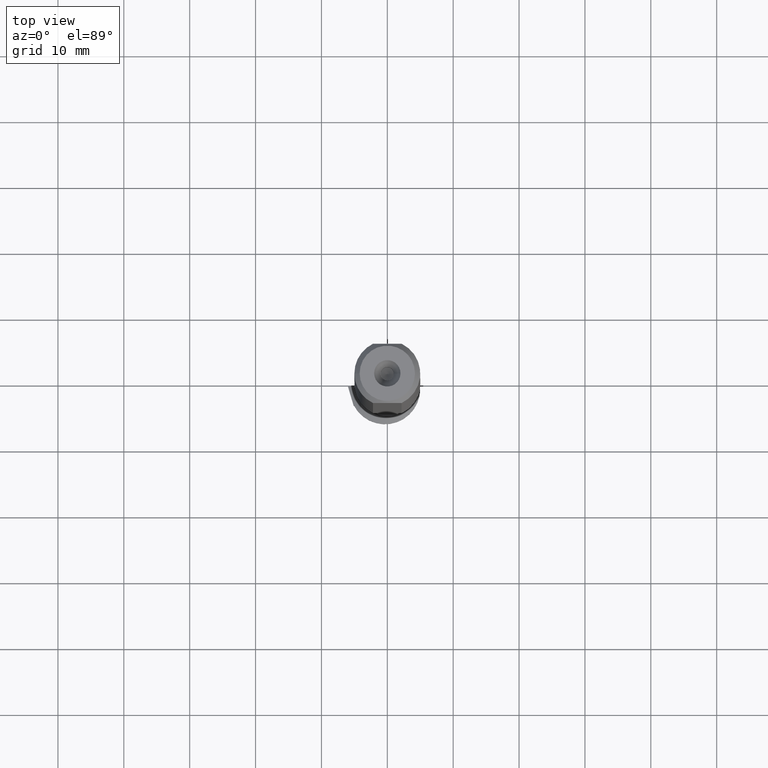
[diagram: clean part render]
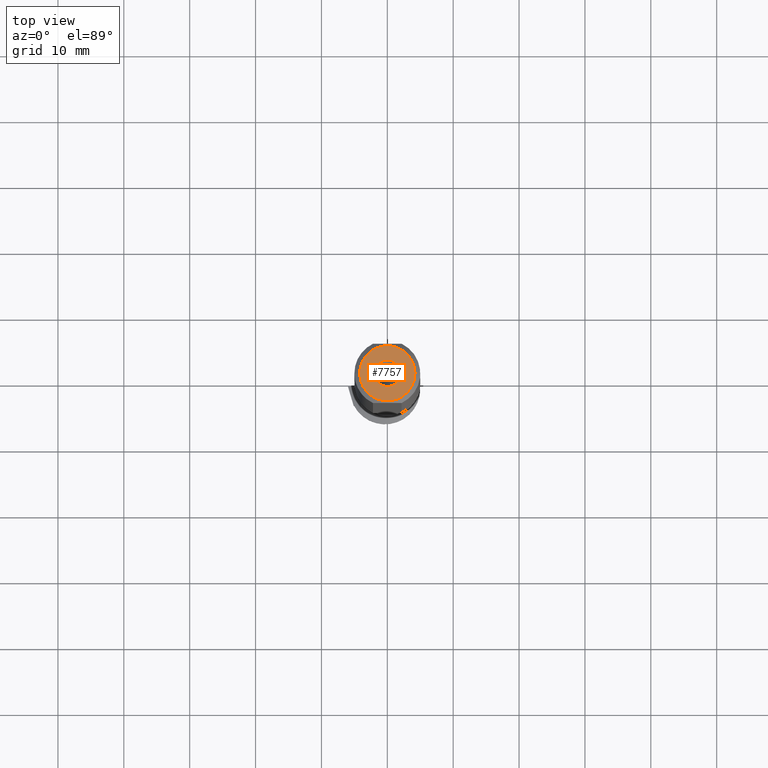
[diagram: same view with one face highlighted and labeled with its STEP entity id]
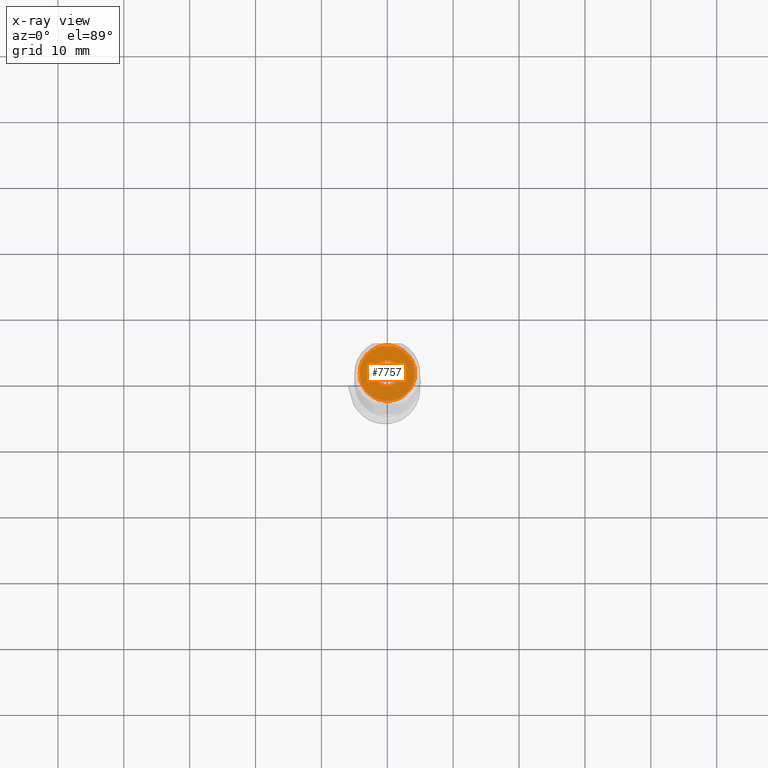
[diagram: x-ray of the same camera — body ghosted, the highlighted face saturated]
A machine part, top view. The second image highlights one B-rep face of the part: STEP entity #7757.
The next image is the same camera in x-ray: the body ghosted, the highlighted face saturated — about 0% of this face is hidden behind the body in this view.
In plain terms, the highlighted planar face has unit normal (-0, 0, -1).
Its self-contained STEP definition (entity closure, byte-faithful):
#305 = AXIS2_PLACEMENT_3D ( 'NONE', #13275, #8145, #7055 ) ;
#1080 = CARTESIAN_POINT ( 'NONE',  ( -71.14402205598935325, 20.97579512832781035, 33.78683574041474458 ) ) ;
#1094 = ORIENTED_EDGE ( 'NONE', *, *, #4914, .F. ) ;
#2234 = VERTEX_POINT ( 'NONE', #6362 ) ;
#2321 = AXIS2_PLACEMENT_3D ( 'NONE', #4726, #8898, #3693 ) ;
#3693 = DIRECTION ( 'NONE',  ( 0.000000000000000000, 0.000000000000000000, -1.000000000000000000 ) ) ;
#3968 = EDGE_LOOP ( 'NONE', ( #1094 ) ) ;
#4726 = CARTESIAN_POINT ( 'NONE',  ( -71.14402205598935325, 20.97579512832781035, 31.78683574045086502 ) ) ;
#4914 = EDGE_CURVE ( 'NONE', #8399, #8399, #9483, .T. ) ;
#5004 = FACE_BOUND ( 'NONE', #3968, .T. ) ;
#5190 = DIRECTION ( 'NONE',  ( -1.000000000000000000, 0.000000000000000000, 0.000000000000000000 ) ) ;
#5249 = EDGE_LOOP ( 'NONE', ( #7682 ) ) ;
#5320 = DIRECTION ( 'NONE',  ( 0.000000000000000000, 0.000000000000000000, 1.000000000000000000 ) ) ;
#5662 = EDGE_CURVE ( 'NONE', #2234, #2234, #7584, .T. ) ;
#6362 = CARTESIAN_POINT ( 'NONE',  ( -71.14402205598935325, 20.97579512832781035, 27.58683574046472131 ) ) ;
#6927 = PLANE ( 'NONE',  #305 ) ;
#7055 = DIRECTION ( 'NONE',  ( 0.000000000000000000, 0.000000000000000000, -1.000000000000000000 ) ) ;
#7584 = CIRCLE ( 'NONE', #2321, 4.199999999986145482 ) ;
#7682 = ORIENTED_EDGE ( 'NONE', *, *, #5662, .F. ) ;
#7757 = ADVANCED_FACE ( 'NONE', ( #9031, #5004 ), #6927, .F. ) ;
#8145 = DIRECTION ( 'NONE',  ( 1.000000000000000000, -0.000000000000000000, 0.000000000000000000 ) ) ;
#8399 = VERTEX_POINT ( 'NONE', #1080 ) ;
#8898 = DIRECTION ( 'NONE',  ( 1.000000000000000000, 0.000000000000000000, 0.000000000000000000 ) ) ;
#9031 = FACE_OUTER_BOUND ( 'NONE', #5249, .T. ) ;
#9288 = CARTESIAN_POINT ( 'NONE',  ( -71.14402205598935325, 20.97579512832781035, 31.78683574045086502 ) ) ;
#9483 = CIRCLE ( 'NONE', #11240, 1.999999999963877784 ) ;
#11240 = AXIS2_PLACEMENT_3D ( 'NONE', #9288, #5190, #5320 ) ;
#13275 = CARTESIAN_POINT ( 'NONE',  ( -71.14402205604126550, 25.17579512832778121, 31.78683574045086502 ) ) ;